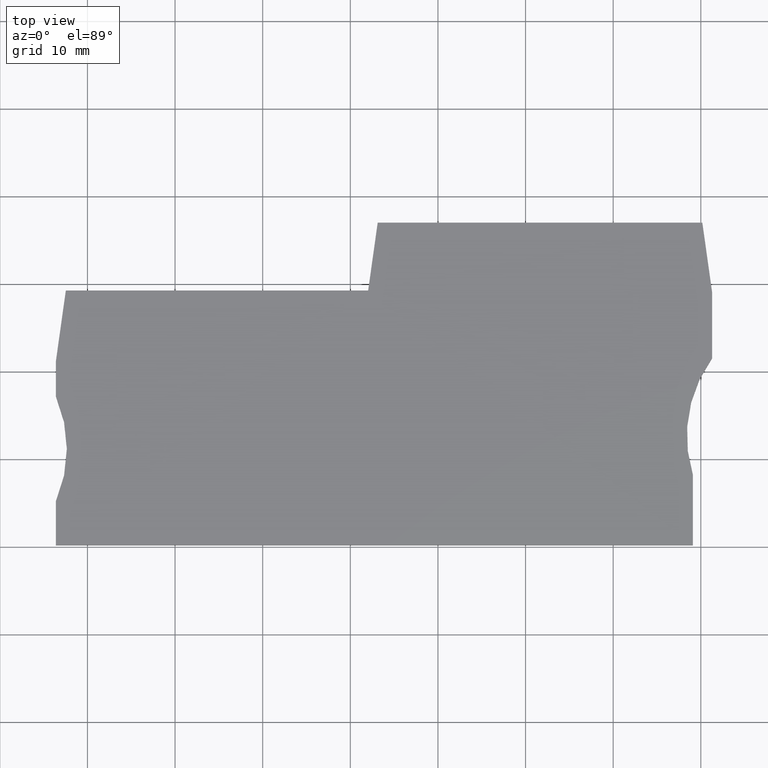
[diagram: clean part render]
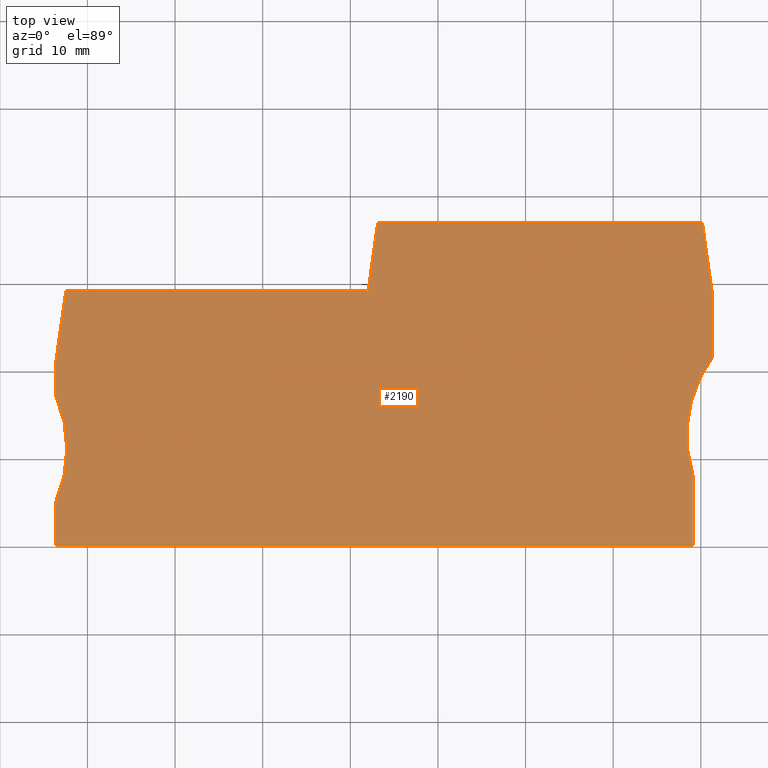
[diagram: same view with one face highlighted and labeled with its STEP entity id]
A machine part, top view. The second image highlights one B-rep face of the part: STEP entity #2190.
In plain terms, the highlighted planar face has unit normal (-0, 0, 1).
Its self-contained STEP definition (entity closure, byte-faithful):
#1140=CARTESIAN_POINT('',(36.7963789996401,-94.0971981712749,
-10.299999999977));
#1150=DIRECTION('',(1.62231146262328E-12,-2.6511546362151E-13,-1.));
#1160=DIRECTION('',(1.,-1.75082170981058E-13,1.62231146262333E-12));
#1170=AXIS2_PLACEMENT_3D('',#1140,#1150,#1160);
#1180=PLANE('',#1170);
#1190=CARTESIAN_POINT('',(-12.7648842681243,-76.5405475857054,
-10.300000000062));
#1200=DIRECTION('',(-2.83162617508304E-12,-8.65946784951905E-13,1.));
#1210=DIRECTION('',(-1.,2.97190732927072E-25,-2.83162617508304E-12));
#1220=AXIS2_PLACEMENT_3D('',#1190,#1200,#1210);
#1230=CIRCLE('',#1220,15.);
#1240=CARTESIAN_POINT('',(0.982842831440719,-82.5405475520293,
-10.3000000000283));
#1250=VERTEX_POINT('',#1240);
#1260=CARTESIAN_POINT('',(0.982842522731413,-70.5405469120396,
-10.3000000000413));
#1270=VERTEX_POINT('',#1260);
#1280=EDGE_CURVE('',#1250,#1270,#1230,.T.);
#1290=ORIENTED_EDGE('',*,*,#1280,.T.);
#1300=CARTESIAN_POINT('',(0.982842831440721,0.,-10.30000000006));
#1310=DIRECTION('',(-2.7755578150056E-17,-1.,2.6511546362151E-13));
#1320=VECTOR('',#1310,1.);
#1330=LINE('',#1300,#1320);
#1340=CARTESIAN_POINT('',(0.982842831440717,-86.521035645541,
-10.3000000000371));
#1350=VERTEX_POINT('',#1340);
#1360=EDGE_CURVE('',#1250,#1350,#1330,.T.);
#1370=ORIENTED_EDGE('',*,*,#1360,.F.);
#1380=CARTESIAN_POINT('',(-11.1768957374987,0.,-10.3000000000797));
#1390=DIRECTION('',(0.139173100960062,-0.990268068741571,
4.88303841805759E-13));
#1400=VECTOR('',#1390,1.);
#1410=LINE('',#1380,#1400);
#1420=CARTESIAN_POINT('',(2.11693877515517,-94.5905475857258,
-10.3000000000331));
#1430=VERTEX_POINT('',#1420);
#1440=EDGE_CURVE('',#1350,#1430,#1410,.T.);
#1450=ORIENTED_EDGE('',*,*,#1440,.F.);
#1460=CARTESIAN_POINT('',(0.,-94.5905475857261,-10.3000000000365));
#1470=DIRECTION('',(1.,1.32949207204527E-13,1.62231146262325E-12));
#1480=VECTOR('',#1470,1.);
#1490=LINE('',#1460,#1480);
#1500=CARTESIAN_POINT('',(36.6191929687286,-94.5905475857213,
-10.2999999999771));
#1510=VERTEX_POINT('',#1500);
#1520=EDGE_CURVE('',#1430,#1510,#1490,.T.);
#1530=ORIENTED_EDGE('',*,*,#1520,.F.);
#1540=CARTESIAN_POINT('',(23.3253584560968,0.,-10.3000000000238));
#1550=DIRECTION('',(0.139173100959842,-0.990268068741602,
4.88317719593567E-13));
#1560=VECTOR('',#1550,1.);
#1570=LINE('',#1540,#1560);
#1580=CARTESIAN_POINT('',(37.7083844376604,-102.34054758565,
-10.2999999999733));
#1590=VERTEX_POINT('',#1580);
#1600=EDGE_CURVE('',#1510,#1590,#1570,.T.);
#1610=ORIENTED_EDGE('',*,*,#1600,.F.);
#1620=CARTESIAN_POINT('',(0.,-102.340547585534,-10.3000000000345));
#1630=DIRECTION('',(1.,-3.09291481312038E-12,1.6223114626241E-12));
#1640=VECTOR('',#1630,1.);
#1650=LINE('',#1620,#1640);
#1660=CARTESIAN_POINT('',(74.7573011951569,-102.340547585765,
-10.2999999999132));
#1670=VERTEX_POINT('',#1660);
#1680=EDGE_CURVE('',#1590,#1670,#1650,.T.);
#1690=ORIENTED_EDGE('',*,*,#1680,.F.);
#1700=CARTESIAN_POINT('',(89.1403271958257,0.,-10.299999999917));
#1710=DIRECTION('',(0.139173101140975,0.990268068716145,
-3.67622599029005E-14));
#1720=VECTOR('',#1710,1.);
#1730=LINE('',#1700,#1720);
#1740=CARTESIAN_POINT('',(75.8735428960757,-94.3980751947125,
-10.2999999999135));
#1750=VERTEX_POINT('',#1740);
#1760=EDGE_CURVE('',#1670,#1750,#1730,.T.);
#1770=ORIENTED_EDGE('',*,*,#1760,.F.);
#1780=CARTESIAN_POINT('',(75.8735428961049,0.,-10.2999999999385));
#1790=DIRECTION('',(3.09058334482062E-13,1.,-2.65115463621008E-13));
#1800=VECTOR('',#1790,1.);
#1810=LINE('',#1780,#1800);
#1820=CARTESIAN_POINT('',(75.8735428960781,-86.8804951726446,
-10.2999999999155));
#1830=VERTEX_POINT('',#1820);
#1840=EDGE_CURVE('',#1750,#1830,#1810,.T.);
#1850=ORIENTED_EDGE('',*,*,#1840,.F.);
#1860=CARTESIAN_POINT('',(87.9919308523428,-78.0405475856134,
-10.2999999998982));
#1870=DIRECTION('',(-2.83162617508304E-12,-8.65946784951905E-13,1.));
#1880=DIRECTION('',(-1.,3.09030578906421E-13,-2.83162617508277E-12));
#1890=AXIS2_PLACEMENT_3D('',#1860,#1870,#1880);
#1900=CIRCLE('',#1890,15.);
#1910=CARTESIAN_POINT('',(73.6828428310914,-73.5405475856044,
-10.2999999999348));
#1920=VERTEX_POINT('',#1910);
#1930=EDGE_CURVE('',#1920,#1830,#1900,.T.);
#1940=ORIENTED_EDGE('',*,*,#1930,.T.);
#1950=CARTESIAN_POINT('',(73.6828428311139,0.,-10.2999999999421));
#1960=DIRECTION('',(3.05588887530108E-13,1.,-2.65115463621014E-13));
#1970=VECTOR('',#1960,1.);
#1980=LINE('',#1950,#1970);
#1990=CARTESIAN_POINT('',(73.6828428310939,-65.5405475857185,
-10.2999999999247));
#2000=VERTEX_POINT('',#1990);
#2010=EDGE_CURVE('',#1920,#2000,#1980,.T.);
#2020=ORIENTED_EDGE('',*,*,#2010,.F.);
#2030=CARTESIAN_POINT('',(0.,-65.5405475857185,-10.3000000000442));
#2040=DIRECTION('',(-1.,5.27893095999418E-25,-1.62231146262328E-12));
#2050=VECTOR('',#2040,1.);
#2060=LINE('',#2030,#2050);
#2070=CARTESIAN_POINT('',(0.982842522731415,-65.5405475857185,
-10.3000000000426));
#2080=VERTEX_POINT('',#2070);
#2090=EDGE_CURVE('',#2000,#2080,#2060,.T.);
#2100=ORIENTED_EDGE('',*,*,#2090,.F.);
#2110=CARTESIAN_POINT('',(0.982842522731421,0.,-10.30000000006));
#2120=DIRECTION('',(-8.32667293813391E-17,-1.,2.6511546362151E-13));
#2130=VECTOR('',#2120,1.);
#2140=LINE('',#2110,#2130);
#2150=EDGE_CURVE('',#2080,#1270,#2140,.T.);
#2160=ORIENTED_EDGE('',*,*,#2150,.F.);
#2170=EDGE_LOOP('',(#2160,#2100,#2020,#1940,#1850,#1770,#1690,#1610,
#1530,#1450,#1370,#1290));
#2180=FACE_OUTER_BOUND('',#2170,.T.);
#2190=ADVANCED_FACE('',(#2180),#1180,.T.);